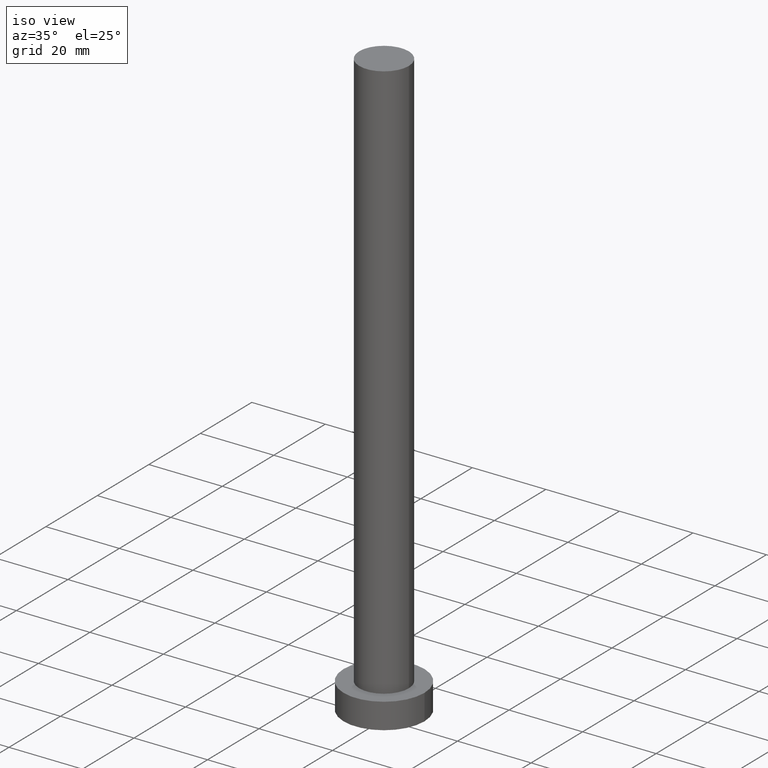
[diagram: clean part render]
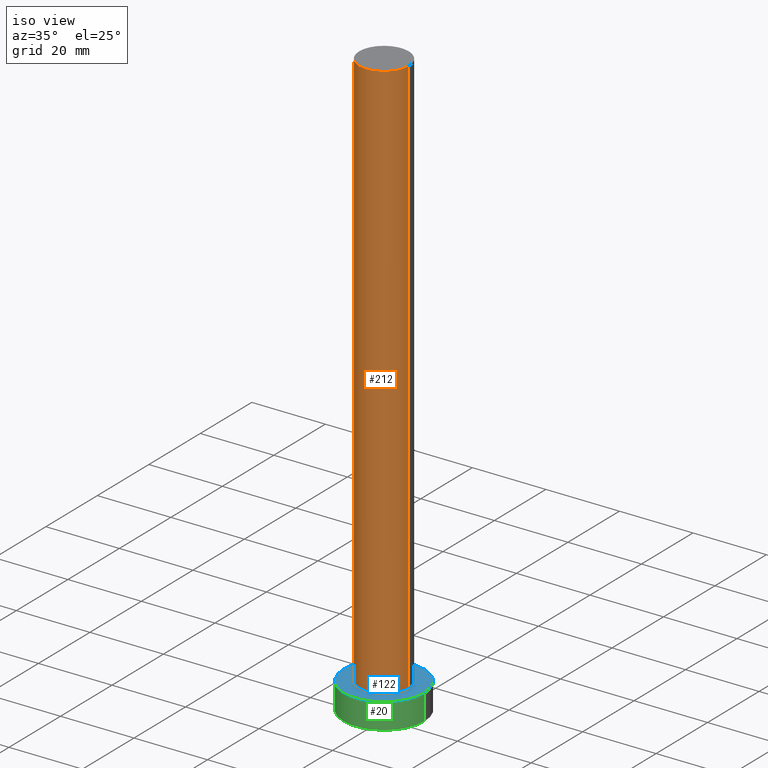
[diagram: same view with three faces highlighted in distinct colors, each labeled with its STEP entity id]
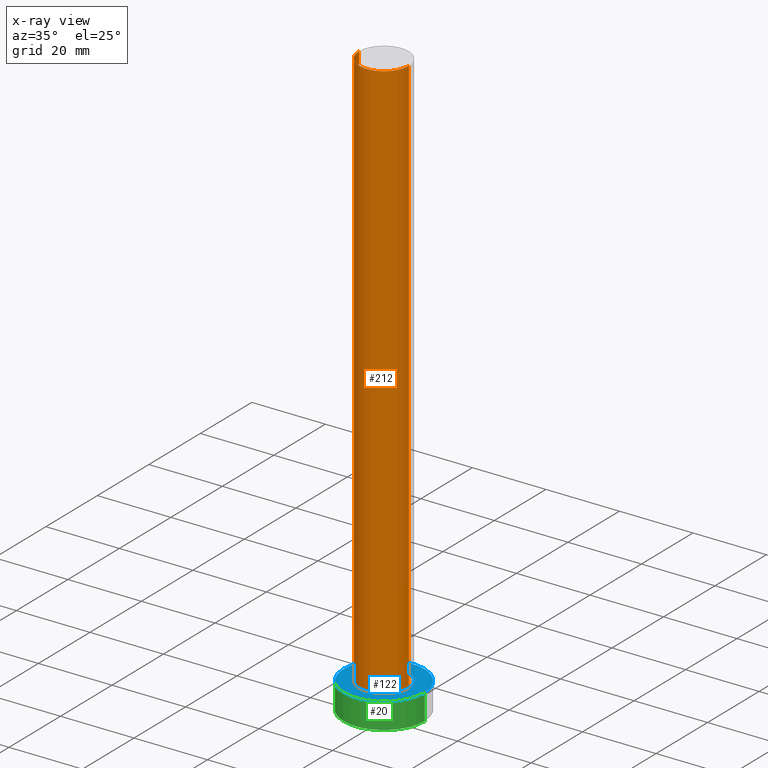
[diagram: x-ray of the same camera — body ghosted, the three highlighted faces saturated]
A machine part, iso view with three faces highlighted in distinct colors.
The next image is the same camera in x-ray (body ghosted, the three faces saturated) — at least one of them is partly hidden behind the body in this view.
Their STEP definitions:

[orange] entity #212 — the highlighted cylindrical surface (edge-blend (fillet) strip) has radius 6.75 mm, axis along (-0, -0, -1).
#10 = EDGE_CURVE ( 'NONE', #183, #200, #158, .T. ) ;
#15 = CARTESIAN_POINT ( 'NONE',  ( 6.750000000000000000, 8.266365894244634333E-16, 7.000000000000000000 ) ) ;
#19 = CARTESIAN_POINT ( 'NONE',  ( -6.750000000000000000, 0.000000000000000000, 160.0000000000000000 ) ) ;
#25 = ORIENTED_EDGE ( 'NONE', *, *, #34, .T. ) ;
#34 = EDGE_CURVE ( 'NONE', #200, #101, #245, .T. ) ;
#38 = CARTESIAN_POINT ( 'NONE',  ( 6.750000000000000000, 8.266365894244634333E-16, 160.0000000000000000 ) ) ;
#62 = AXIS2_PLACEMENT_3D ( 'NONE', #171, #251, #94 ) ;
#76 = CARTESIAN_POINT ( 'NONE',  ( 6.750000000000000000, 8.266365894244634333E-16, 160.0000000000000000 ) ) ;
#77 = CARTESIAN_POINT ( 'NONE',  ( 0.000000000000000000, 0.000000000000000000, 7.000000000000000000 ) ) ;
#78 = EDGE_CURVE ( 'NONE', #183, #91, #246, .T. ) ;
#81 = CARTESIAN_POINT ( 'NONE',  ( -6.750000000000000000, 0.000000000000000000, 7.000000000000000000 ) ) ;
#90 = AXIS2_PLACEMENT_3D ( 'NONE', #199, #178, #100 ) ;
#91 = VERTEX_POINT ( 'NONE', #76 ) ;
#94 = DIRECTION ( 'NONE',  ( 1.000000000000000000, 0.000000000000000000, 0.000000000000000000 ) ) ;
#95 = EDGE_CURVE ( 'NONE', #91, #101, #134, .T. ) ;
#96 = CARTESIAN_POINT ( 'NONE',  ( -6.750000000000000000, 0.000000000000000000, 160.0000000000000000 ) ) ;
#100 = DIRECTION ( 'NONE',  ( -1.000000000000000000, 0.000000000000000000, 0.000000000000000000 ) ) ;
#101 = VERTEX_POINT ( 'NONE', #15 ) ;
#106 = CYLINDRICAL_SURFACE ( 'NONE', #90, 6.750000000000000000 ) ;
#111 = VECTOR ( 'NONE', #151, 1000.000000000000000 ) ;
#114 = DIRECTION ( 'NONE',  ( -0.000000000000000000, -0.000000000000000000, -1.000000000000000000 ) ) ;
#121 = FACE_OUTER_BOUND ( 'NONE', #219, .T. ) ;
#134 = LINE ( 'NONE', #38, #204 ) ;
#138 = ORIENTED_EDGE ( 'NONE', *, *, #95, .F. ) ;
#151 = DIRECTION ( 'NONE',  ( -0.000000000000000000, -0.000000000000000000, -1.000000000000000000 ) ) ;
#154 = DIRECTION ( 'NONE',  ( 1.000000000000000000, 0.000000000000000000, 0.000000000000000000 ) ) ;
#158 = LINE ( 'NONE', #96, #111 ) ;
#171 = CARTESIAN_POINT ( 'NONE',  ( 0.000000000000000000, 0.000000000000000000, 160.0000000000000000 ) ) ;
#172 = DIRECTION ( 'NONE',  ( 0.000000000000000000, 0.000000000000000000, 1.000000000000000000 ) ) ;
#178 = DIRECTION ( 'NONE',  ( -0.000000000000000000, -0.000000000000000000, -1.000000000000000000 ) ) ;
#183 = VERTEX_POINT ( 'NONE', #19 ) ;
#197 = AXIS2_PLACEMENT_3D ( 'NONE', #77, #172, #154 ) ;
#199 = CARTESIAN_POINT ( 'NONE',  ( 0.000000000000000000, 0.000000000000000000, 160.0000000000000000 ) ) ;
#200 = VERTEX_POINT ( 'NONE', #81 ) ;
#204 = VECTOR ( 'NONE', #114, 1000.000000000000000 ) ;
#206 = ORIENTED_EDGE ( 'NONE', *, *, #10, .T. ) ;
#211 = ORIENTED_EDGE ( 'NONE', *, *, #78, .F. ) ;
#212 = ADVANCED_FACE ( 'NONE', ( #121 ), #106, .T. ) ;
#219 = EDGE_LOOP ( 'NONE', ( #138, #211, #206, #25 ) ) ;
#245 = CIRCLE ( 'NONE', #197, 6.750000000000000000 ) ;
#246 = CIRCLE ( 'NONE', #62, 6.750000000000000000 ) ;
#251 = DIRECTION ( 'NONE',  ( 0.000000000000000000, 0.000000000000000000, 1.000000000000000000 ) ) ;

[blue] entity #122 — the highlighted planar face has unit normal (0, 0, 1).
#4 = EDGE_CURVE ( 'NONE', #191, #225, #9, .T. ) ;
#9 = CIRCLE ( 'NONE', #71, 11.00000000000000000 ) ;
#14 = DIRECTION ( 'NONE',  ( 1.000000000000000000, 0.000000000000000000, 0.000000000000000000 ) ) ;
#15 = CARTESIAN_POINT ( 'NONE',  ( 6.750000000000000000, 8.266365894244634333E-16, 7.000000000000000000 ) ) ;
#16 = CARTESIAN_POINT ( 'NONE',  ( 0.000000000000000000, 0.000000000000000000, 7.000000000000000000 ) ) ;
#22 = DIRECTION ( 'NONE',  ( 0.000000000000000000, 0.000000000000000000, 1.000000000000000000 ) ) ;
#34 = EDGE_CURVE ( 'NONE', #200, #101, #245, .T. ) ;
#39 = PLANE ( 'NONE',  #237 ) ;
#41 = EDGE_CURVE ( 'NONE', #101, #200, #118, .T. ) ;
#42 = DIRECTION ( 'NONE',  ( 1.000000000000000000, 0.000000000000000000, -0.000000000000000000 ) ) ;
#58 = CARTESIAN_POINT ( 'NONE',  ( 0.000000000000000000, 0.000000000000000000, 7.000000000000000000 ) ) ;
#71 = AXIS2_PLACEMENT_3D ( 'NONE', #58, #192, #97 ) ;
#77 = CARTESIAN_POINT ( 'NONE',  ( 0.000000000000000000, 0.000000000000000000, 7.000000000000000000 ) ) ;
#81 = CARTESIAN_POINT ( 'NONE',  ( -6.750000000000000000, 0.000000000000000000, 7.000000000000000000 ) ) ;
#84 = EDGE_LOOP ( 'NONE', ( #116, #253 ) ) ;
#97 = DIRECTION ( 'NONE',  ( 1.000000000000000000, 0.000000000000000000, 0.000000000000000000 ) ) ;
#101 = VERTEX_POINT ( 'NONE', #15 ) ;
#112 = ORIENTED_EDGE ( 'NONE', *, *, #34, .F. ) ;
#116 = ORIENTED_EDGE ( 'NONE', *, *, #4, .T. ) ;
#118 = CIRCLE ( 'NONE', #175, 6.750000000000000000 ) ;
#122 = ADVANCED_FACE ( 'NONE', ( #196, #215 ), #39, .T. ) ;
#131 = CIRCLE ( 'NONE', #203, 11.00000000000000000 ) ;
#136 = EDGE_LOOP ( 'NONE', ( #112, #241 ) ) ;
#140 = DIRECTION ( 'NONE',  ( 1.000000000000000000, 0.000000000000000000, 0.000000000000000000 ) ) ;
#152 = EDGE_CURVE ( 'NONE', #225, #191, #131, .T. ) ;
#154 = DIRECTION ( 'NONE',  ( 1.000000000000000000, 0.000000000000000000, 0.000000000000000000 ) ) ;
#160 = CARTESIAN_POINT ( 'NONE',  ( 11.00000000000000000, 1.347111479062088405E-15, 7.000000000000000000 ) ) ;
#172 = DIRECTION ( 'NONE',  ( 0.000000000000000000, 0.000000000000000000, 1.000000000000000000 ) ) ;
#175 = AXIS2_PLACEMENT_3D ( 'NONE', #230, #250, #14 ) ;
#182 = CARTESIAN_POINT ( 'NONE',  ( 0.000000000000000000, 0.000000000000000000, 7.000000000000000000 ) ) ;
#191 = VERTEX_POINT ( 'NONE', #235 ) ;
#192 = DIRECTION ( 'NONE',  ( 0.000000000000000000, 0.000000000000000000, 1.000000000000000000 ) ) ;
#196 = FACE_BOUND ( 'NONE', #136, .T. ) ;
#197 = AXIS2_PLACEMENT_3D ( 'NONE', #77, #172, #154 ) ;
#200 = VERTEX_POINT ( 'NONE', #81 ) ;
#203 = AXIS2_PLACEMENT_3D ( 'NONE', #182, #22, #140 ) ;
#215 = FACE_OUTER_BOUND ( 'NONE', #84, .T. ) ;
#225 = VERTEX_POINT ( 'NONE', #160 ) ;
#230 = CARTESIAN_POINT ( 'NONE',  ( 0.000000000000000000, 0.000000000000000000, 7.000000000000000000 ) ) ;
#235 = CARTESIAN_POINT ( 'NONE',  ( -11.00000000000000000, 0.000000000000000000, 7.000000000000000000 ) ) ;
#237 = AXIS2_PLACEMENT_3D ( 'NONE', #16, #238, #42 ) ;
#238 = DIRECTION ( 'NONE',  ( 0.000000000000000000, 0.000000000000000000, 1.000000000000000000 ) ) ;
#241 = ORIENTED_EDGE ( 'NONE', *, *, #41, .F. ) ;
#245 = CIRCLE ( 'NONE', #197, 6.750000000000000000 ) ;
#250 = DIRECTION ( 'NONE',  ( 0.000000000000000000, 0.000000000000000000, 1.000000000000000000 ) ) ;
#253 = ORIENTED_EDGE ( 'NONE', *, *, #152, .T. ) ;

[green] entity #20 — the highlighted cylindrical surface (partial cylindrical patch) has radius 11 mm, axis along (-0, -0, -1).
#4 = EDGE_CURVE ( 'NONE', #191, #225, #9, .T. ) ;
#9 = CIRCLE ( 'NONE', #71, 11.00000000000000000 ) ;
#20 = ADVANCED_FACE ( 'NONE', ( #32 ), #194, .T. ) ;
#21 = ORIENTED_EDGE ( 'NONE', *, *, #167, .T. ) ;
#32 = FACE_OUTER_BOUND ( 'NONE', #141, .T. ) ;
#37 = DIRECTION ( 'NONE',  ( -0.000000000000000000, -0.000000000000000000, -1.000000000000000000 ) ) ;
#50 = ORIENTED_EDGE ( 'NONE', *, *, #53, .F. ) ;
#53 = EDGE_CURVE ( 'NONE', #225, #229, #117, .T. ) ;
#57 = ORIENTED_EDGE ( 'NONE', *, *, #4, .F. ) ;
#58 = CARTESIAN_POINT ( 'NONE',  ( 0.000000000000000000, 0.000000000000000000, 7.000000000000000000 ) ) ;
#63 = DIRECTION ( 'NONE',  ( 1.000000000000000000, 0.000000000000000000, 0.000000000000000000 ) ) ;
#65 = DIRECTION ( 'NONE',  ( 0.000000000000000000, 0.000000000000000000, 1.000000000000000000 ) ) ;
#70 = EDGE_CURVE ( 'NONE', #191, #92, #132, .T. ) ;
#71 = AXIS2_PLACEMENT_3D ( 'NONE', #58, #192, #97 ) ;
#73 = VECTOR ( 'NONE', #74, 1000.000000000000000 ) ;
#74 = DIRECTION ( 'NONE',  ( -0.000000000000000000, -0.000000000000000000, -1.000000000000000000 ) ) ;
#75 = CIRCLE ( 'NONE', #209, 11.00000000000000000 ) ;
#83 = CARTESIAN_POINT ( 'NONE',  ( 11.00000000000000000, 1.347111479062088405E-15, 0.000000000000000000 ) ) ;
#92 = VERTEX_POINT ( 'NONE', #254 ) ;
#97 = DIRECTION ( 'NONE',  ( 1.000000000000000000, 0.000000000000000000, 0.000000000000000000 ) ) ;
#117 = LINE ( 'NONE', #176, #73 ) ;
#132 = LINE ( 'NONE', #210, #217 ) ;
#135 = AXIS2_PLACEMENT_3D ( 'NONE', #232, #213, #255 ) ;
#141 = EDGE_LOOP ( 'NONE', ( #50, #57, #186, #21 ) ) ;
#160 = CARTESIAN_POINT ( 'NONE',  ( 11.00000000000000000, 1.347111479062088405E-15, 7.000000000000000000 ) ) ;
#167 = EDGE_CURVE ( 'NONE', #92, #229, #75, .T. ) ;
#176 = CARTESIAN_POINT ( 'NONE',  ( 11.00000000000000000, 1.347111479062088405E-15, 7.000000000000000000 ) ) ;
#186 = ORIENTED_EDGE ( 'NONE', *, *, #70, .T. ) ;
#191 = VERTEX_POINT ( 'NONE', #235 ) ;
#192 = DIRECTION ( 'NONE',  ( 0.000000000000000000, 0.000000000000000000, 1.000000000000000000 ) ) ;
#194 = CYLINDRICAL_SURFACE ( 'NONE', #135, 11.00000000000000000 ) ;
#209 = AXIS2_PLACEMENT_3D ( 'NONE', #243, #65, #63 ) ;
#210 = CARTESIAN_POINT ( 'NONE',  ( -11.00000000000000000, 0.000000000000000000, 7.000000000000000000 ) ) ;
#213 = DIRECTION ( 'NONE',  ( -0.000000000000000000, -0.000000000000000000, -1.000000000000000000 ) ) ;
#217 = VECTOR ( 'NONE', #37, 1000.000000000000000 ) ;
#225 = VERTEX_POINT ( 'NONE', #160 ) ;
#229 = VERTEX_POINT ( 'NONE', #83 ) ;
#232 = CARTESIAN_POINT ( 'NONE',  ( 0.000000000000000000, 0.000000000000000000, 7.000000000000000000 ) ) ;
#235 = CARTESIAN_POINT ( 'NONE',  ( -11.00000000000000000, 0.000000000000000000, 7.000000000000000000 ) ) ;
#243 = CARTESIAN_POINT ( 'NONE',  ( 0.000000000000000000, 0.000000000000000000, 0.000000000000000000 ) ) ;
#254 = CARTESIAN_POINT ( 'NONE',  ( -11.00000000000000000, 0.000000000000000000, 0.000000000000000000 ) ) ;
#255 = DIRECTION ( 'NONE',  ( -1.000000000000000000, 0.000000000000000000, 0.000000000000000000 ) ) ;